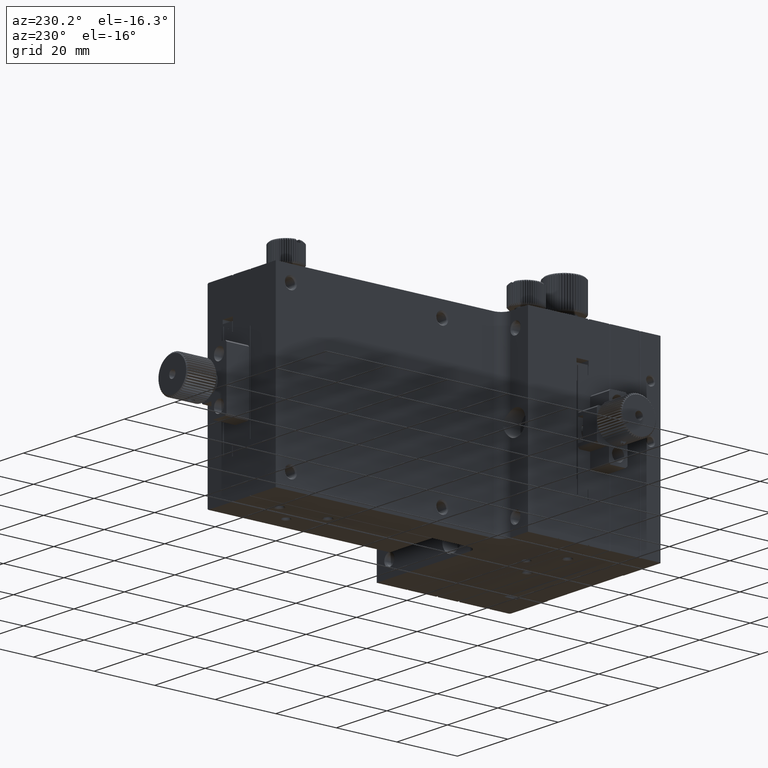
[diagram: clean part render]
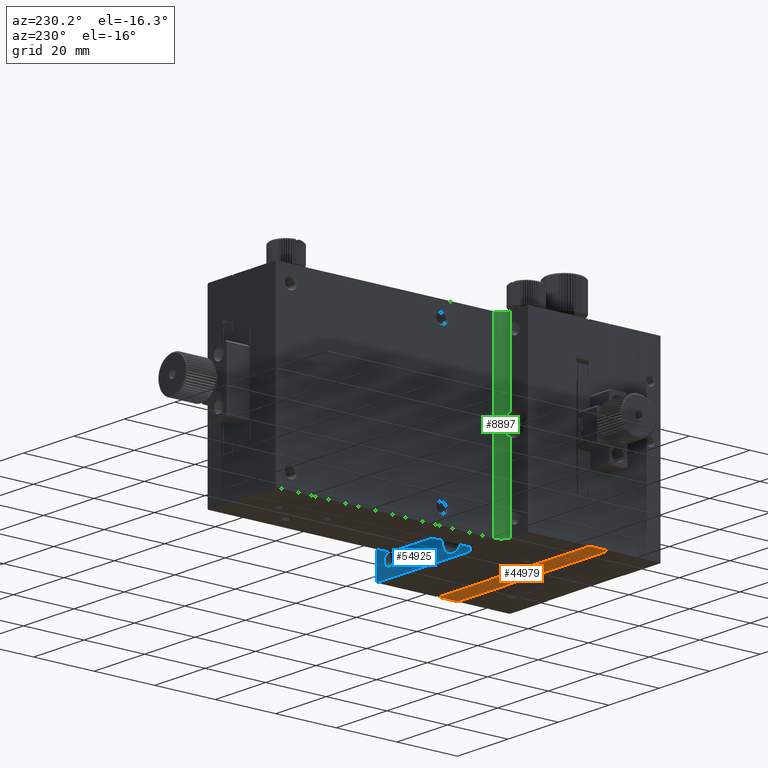
[diagram: same view with three faces highlighted in distinct colors, each labeled with its STEP entity id]
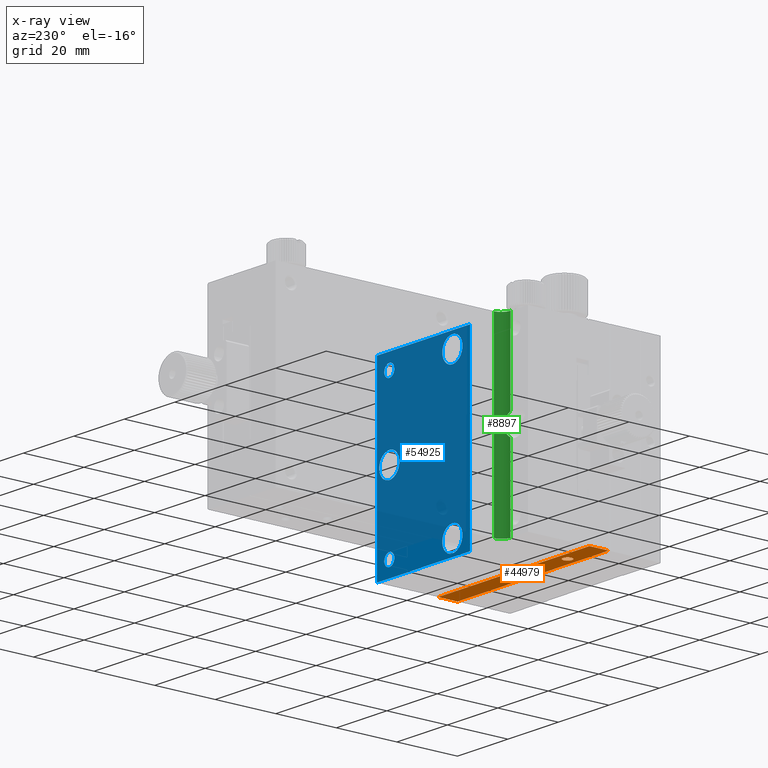
[diagram: x-ray of the same camera — body ghosted, the three highlighted faces saturated]
A machine part, auxiliary view with three faces highlighted in distinct colors.
The next image is the same camera in x-ray (body ghosted, the three faces saturated) — at least one of them is partly hidden behind the body in this view.
Their STEP definitions:

[orange] entity #44979 — the highlighted planar face has unit normal (0, 0, 1).
#297 = DIRECTION ( 'NONE',  ( -1.000000000000000000, 0.000000000000000000, 0.000000000000000000 ) ) ;
#502 = ORIENTED_EDGE ( 'NONE', *, *, #565, .T. ) ;
#565 = EDGE_CURVE ( 'NONE', #61432, #23209, #61410, .T. ) ;
#2445 = ORIENTED_EDGE ( 'NONE', *, *, #46909, .F. ) ;
#2472 = EDGE_CURVE ( 'NONE', #51842, #51842, #29986, .T. ) ;
#3739 = CARTESIAN_POINT ( 'NONE',  ( 60.00000000000000000, -10.29999999999998117, -60.00000000000000000 ) ) ;
#4058 = VECTOR ( 'NONE', #16134, 1000.000000000000000 ) ;
#6681 = ORIENTED_EDGE ( 'NONE', *, *, #53679, .F. ) ;
#8360 = VECTOR ( 'NONE', #37218, 1000.000000000000000 ) ;
#8801 = EDGE_LOOP ( 'NONE', ( #38673 ) ) ;
#11036 = LINE ( 'NONE', #40934, #4058 ) ;
#13781 = ORIENTED_EDGE ( 'NONE', *, *, #59501, .F. ) ;
#15052 = DIRECTION ( 'NONE',  ( -0.000000000000000000, 1.000000000000000000, 0.000000000000000000 ) ) ;
#16134 = DIRECTION ( 'NONE',  ( 1.000000000000000000, 0.000000000000000000, -0.000000000000000000 ) ) ;
#18873 = FACE_BOUND ( 'NONE', #8801, .T. ) ;
#20150 = CARTESIAN_POINT ( 'NONE',  ( 0.000000000000000000, -16.69999999999999218, -60.00000000000000000 ) ) ;
#21543 = VECTOR ( 'NONE', #34009, 1000.000000000000000 ) ;
#22133 = DIRECTION ( 'NONE',  ( -1.000000000000000000, 0.000000000000000000, 0.000000000000000000 ) ) ;
#23209 = VERTEX_POINT ( 'NONE', #51074 ) ;
#23519 = CARTESIAN_POINT ( 'NONE',  ( 0.000000000000000000, -17.00000000000000000, -60.00000000000000000 ) ) ;
#24023 = VECTOR ( 'NONE', #15052, 1000.000000000000000 ) ;
#25303 = AXIS2_PLACEMENT_3D ( 'NONE', #47069, #48060, #297 ) ;
#27784 = EDGE_LOOP ( 'NONE', ( #13781, #6681, #2445, #502 ) ) ;
#29986 = CIRCLE ( 'NONE', #54333, 1.500000000032742475 ) ;
#30533 = AXIS2_PLACEMENT_3D ( 'NONE', #34152, #57682, #58624 ) ;
#34009 = DIRECTION ( 'NONE',  ( -1.000000000000000000, -0.000000000000000000, 0.000000000000000000 ) ) ;
#34152 = CARTESIAN_POINT ( 'NONE',  ( 60.00000000000000000, -16.69999999999998863, -60.00000000000000000 ) ) ;
#34157 = CARTESIAN_POINT ( 'NONE',  ( 60.00000000000000000, -10.29999999999997939, -60.00000000000000000 ) ) ;
#34477 = VERTEX_POINT ( 'NONE', #49411 ) ;
#37218 = DIRECTION ( 'NONE',  ( -0.000000000000000000, 1.000000000000000000, 0.000000000000000000 ) ) ;
#37975 = CARTESIAN_POINT ( 'NONE',  ( 60.00000000000000000, -16.69999999999999218, -60.00000000000000000 ) ) ;
#38673 = ORIENTED_EDGE ( 'NONE', *, *, #2472, .F. ) ;
#38929 = PLANE ( 'NONE',  #30533 ) ;
#40934 = CARTESIAN_POINT ( 'NONE',  ( 60.00000000000000000, -16.69999999999998863, -60.00000000000000000 ) ) ;
#41547 = CARTESIAN_POINT ( 'NONE',  ( 12.50000000000000000, -13.50000000000000178, -60.00000000000227374 ) ) ;
#44001 = LINE ( 'NONE', #47600, #24023 ) ;
#44979 = ADVANCED_FACE ( 'NONE', ( #62476, #18873, #53211 ), #38929, .F. ) ;
#46909 = EDGE_CURVE ( 'NONE', #61432, #55225, #11036, .T. ) ;
#47069 = CARTESIAN_POINT ( 'NONE',  ( 28.50000000000000000, -13.50000000000000178, -60.00000000000227374 ) ) ;
#47393 = LINE ( 'NONE', #3739, #21543 ) ;
#47600 = CARTESIAN_POINT ( 'NONE',  ( 60.00000000000000000, -17.00000000000000000, -60.00000000000000000 ) ) ;
#48060 = DIRECTION ( 'NONE',  ( 0.000000000000000000, 0.000000000000000000, -1.000000000000000000 ) ) ;
#48349 = EDGE_LOOP ( 'NONE', ( #61289 ) ) ;
#49411 = CARTESIAN_POINT ( 'NONE',  ( 26.99999999998681233, -13.50000000000000178, -60.00000000000227374 ) ) ;
#51074 = CARTESIAN_POINT ( 'NONE',  ( 0.000000000000000000, -10.29999999999997939, -60.00000000000000000 ) ) ;
#51842 = VERTEX_POINT ( 'NONE', #55335 ) ;
#52735 = CIRCLE ( 'NONE', #25303, 1.500000000013188783 ) ;
#53211 = FACE_BOUND ( 'NONE', #48349, .T. ) ;
#53679 = EDGE_CURVE ( 'NONE', #55225, #59260, #44001, .T. ) ;
#54333 = AXIS2_PLACEMENT_3D ( 'NONE', #41547, #61591, #22133 ) ;
#55225 = VERTEX_POINT ( 'NONE', #37975 ) ;
#55335 = CARTESIAN_POINT ( 'NONE',  ( 10.99999999996725819, -13.50000000000000178, -60.00000000000227374 ) ) ;
#55546 = EDGE_CURVE ( 'NONE', #34477, #34477, #52735, .T. ) ;
#57682 = DIRECTION ( 'NONE',  ( 0.000000000000000000, 0.000000000000000000, 1.000000000000000000 ) ) ;
#58624 = DIRECTION ( 'NONE',  ( 1.000000000000000000, 0.000000000000000000, -0.000000000000000000 ) ) ;
#59260 = VERTEX_POINT ( 'NONE', #34157 ) ;
#59501 = EDGE_CURVE ( 'NONE', #59260, #23209, #47393, .T. ) ;
#61289 = ORIENTED_EDGE ( 'NONE', *, *, #55546, .F. ) ;
#61410 = LINE ( 'NONE', #23519, #8360 ) ;
#61432 = VERTEX_POINT ( 'NONE', #20150 ) ;
#61591 = DIRECTION ( 'NONE',  ( 0.000000000000000000, 0.000000000000000000, -1.000000000000000000 ) ) ;
#62476 = FACE_OUTER_BOUND ( 'NONE', #27784, .T. ) ;

[blue] entity #54925 — the highlighted planar face has unit normal (0, 1, 0).
#1139 = EDGE_LOOP ( 'NONE', ( #60694 ) ) ;
#1708 = CIRCLE ( 'NONE', #41390, 2.000000000014097168 ) ;
#2951 = VERTEX_POINT ( 'NONE', #7704 ) ;
#3283 = CARTESIAN_POINT ( 'NONE',  ( 23.00000000000000000, 10.00000000000000178, -60.00000000000000000 ) ) ;
#4722 = DIRECTION ( 'NONE',  ( 0.000000000000000000, 0.000000000000000000, -1.000000000000000000 ) ) ;
#4815 = VERTEX_POINT ( 'NONE', #52273 ) ;
#5153 = LINE ( 'NONE', #62172, #26423 ) ;
#5542 = DIRECTION ( 'NONE',  ( -0.000000000000000000, 0.000000000000000000, -1.000000000000000000 ) ) ;
#7247 = CIRCLE ( 'NONE', #27651, 4.000000000000003553 ) ;
#7637 = LINE ( 'NONE', #50990, #18066 ) ;
#7704 = CARTESIAN_POINT ( 'NONE',  ( 55.00000000000000000, 10.00000000000000000, -34.00000000000000000 ) ) ;
#8135 = CARTESIAN_POINT ( 'NONE',  ( 30.00000000000000000, 10.00000000000000000, -9.000000000000001776 ) ) ;
#8386 = ORIENTED_EDGE ( 'NONE', *, *, #45010, .F. ) ;
#9081 = VERTEX_POINT ( 'NONE', #8135 ) ;
#9161 = VECTOR ( 'NONE', #5542, 1000.000000000000000 ) ;
#10822 = DIRECTION ( 'NONE',  ( 0.000000000000000000, 0.000000000000000000, -1.000000000000000000 ) ) ;
#11243 = EDGE_LOOP ( 'NONE', ( #20340 ) ) ;
#11883 = EDGE_CURVE ( 'NONE', #9081, #9081, #62149, .T. ) ;
#12736 = ORIENTED_EDGE ( 'NONE', *, *, #51970, .T. ) ;
#13875 = FACE_BOUND ( 'NONE', #11243, .T. ) ;
#15627 = CARTESIAN_POINT ( 'NONE',  ( 23.00000000000000000, 10.00000000000000178, 0.000000000000000000 ) ) ;
#16359 = VERTEX_POINT ( 'NONE', #15627 ) ;
#16410 = AXIS2_PLACEMENT_3D ( 'NONE', #24381, #43796, #44096 ) ;
#18066 = VECTOR ( 'NONE', #36670, 1000.000000000000000 ) ;
#18343 = FACE_BOUND ( 'NONE', #26518, .T. ) ;
#18566 = DIRECTION ( 'NONE',  ( -1.000000000000000000, -0.000000000000000000, 0.000000000000000000 ) ) ;
#20340 = ORIENTED_EDGE ( 'NONE', *, *, #11883, .T. ) ;
#20826 = CIRCLE ( 'NONE', #43142, 2.000000000059572347 ) ;
#23084 = CARTESIAN_POINT ( 'NONE',  ( 30.00000000000000000, 10.00000000000000000, -59.00000000000000000 ) ) ;
#24381 = CARTESIAN_POINT ( 'NONE',  ( 30.00000000000000000, 10.00000000000000000, -5.000000000000000000 ) ) ;
#24590 = EDGE_CURVE ( 'NONE', #39419, #16359, #34892, .T. ) ;
#24665 = FACE_OUTER_BOUND ( 'NONE', #33664, .T. ) ;
#25272 = AXIS2_PLACEMENT_3D ( 'NONE', #57137, #57768, #33622 ) ;
#25685 = DIRECTION ( 'NONE',  ( 0.000000000000000000, 0.000000000000000000, 1.000000000000000000 ) ) ;
#26312 = DIRECTION ( 'NONE',  ( 0.000000000000000000, -1.000000000000000000, -0.000000000000000000 ) ) ;
#26423 = VECTOR ( 'NONE', #18566, 1000.000000000000000 ) ;
#26518 = EDGE_LOOP ( 'NONE', ( #48358 ) ) ;
#27068 = CARTESIAN_POINT ( 'NONE',  ( 55.00000000000000000, 10.00000000000000000, -30.00000000000000000 ) ) ;
#27159 = CIRCLE ( 'NONE', #36332, 3.999999999999996447 ) ;
#27651 = AXIS2_PLACEMENT_3D ( 'NONE', #27068, #49031, #4722 ) ;
#28176 = VERTEX_POINT ( 'NONE', #46923 ) ;
#30870 = CARTESIAN_POINT ( 'NONE',  ( 30.00000000000000000, 10.00000000000000000, -55.00000000000000000 ) ) ;
#31347 = DIRECTION ( 'NONE',  ( 0.000000000000000000, -1.000000000000000000, -0.000000000000000000 ) ) ;
#33467 = CARTESIAN_POINT ( 'NONE',  ( 55.00000000000000000, 9.999999999990905053, -2.999999999985902832 ) ) ;
#33622 = DIRECTION ( 'NONE',  ( 0.000000000000000000, -0.000000000000000000, 1.000000000000000000 ) ) ;
#33664 = EDGE_LOOP ( 'NONE', ( #37168, #53033, #8386, #51229 ) ) ;
#34570 = CARTESIAN_POINT ( 'NONE',  ( 60.00000000000000000, 10.00000000000000000, -60.00000000000000000 ) ) ;
#34892 = LINE ( 'NONE', #43802, #57023 ) ;
#35020 = EDGE_CURVE ( 'NONE', #28176, #39419, #7637, .T. ) ;
#35813 = DIRECTION ( 'NONE',  ( 0.000000000000000000, 0.000000000000000000, 1.000000000000000000 ) ) ;
#36332 = AXIS2_PLACEMENT_3D ( 'NONE', #30870, #44882, #10822 ) ;
#36670 = DIRECTION ( 'NONE',  ( -1.000000000000000000, -0.000000000000000000, 0.000000000000000000 ) ) ;
#37168 = ORIENTED_EDGE ( 'NONE', *, *, #35020, .T. ) ;
#38053 = PLANE ( 'NONE',  #25272 ) ;
#39275 = EDGE_CURVE ( 'NONE', #53195, #28176, #58729, .T. ) ;
#39419 = VERTEX_POINT ( 'NONE', #3283 ) ;
#40142 = ORIENTED_EDGE ( 'NONE', *, *, #62195, .T. ) ;
#41390 = AXIS2_PLACEMENT_3D ( 'NONE', #50128, #31347, #35813 ) ;
#42715 = EDGE_CURVE ( 'NONE', #43762, #43762, #27159, .T. ) ;
#43142 = AXIS2_PLACEMENT_3D ( 'NONE', #50508, #26312, #25685 ) ;
#43473 = DIRECTION ( 'NONE',  ( 0.000000000000000000, 0.000000000000000000, 1.000000000000000000 ) ) ;
#43762 = VERTEX_POINT ( 'NONE', #23084 ) ;
#43796 = DIRECTION ( 'NONE',  ( 0.000000000000000000, -1.000000000000000000, 0.000000000000000000 ) ) ;
#43802 = CARTESIAN_POINT ( 'NONE',  ( 23.00000000000000000, 10.00000000000000178, -60.00000000000000000 ) ) ;
#44096 = DIRECTION ( 'NONE',  ( 0.000000000000000000, 0.000000000000000000, -1.000000000000000000 ) ) ;
#44882 = DIRECTION ( 'NONE',  ( 0.000000000000000000, -1.000000000000000000, 0.000000000000000000 ) ) ;
#45010 = EDGE_CURVE ( 'NONE', #53195, #16359, #5153, .T. ) ;
#46923 = CARTESIAN_POINT ( 'NONE',  ( 60.00000000000000000, 10.00000000000000000, -60.00000000000000000 ) ) ;
#47611 = FACE_BOUND ( 'NONE', #1139, .T. ) ;
#47879 = EDGE_CURVE ( 'NONE', #2951, #2951, #7247, .T. ) ;
#48078 = VERTEX_POINT ( 'NONE', #33467 ) ;
#48358 = ORIENTED_EDGE ( 'NONE', *, *, #42715, .T. ) ;
#49031 = DIRECTION ( 'NONE',  ( 0.000000000000000000, -1.000000000000000000, 0.000000000000000000 ) ) ;
#50128 = CARTESIAN_POINT ( 'NONE',  ( 55.00000000000000000, 9.999999999990905053, -5.000000000000000000 ) ) ;
#50508 = CARTESIAN_POINT ( 'NONE',  ( 55.00000000000000000, 9.999999999990905053, -55.00000000000000000 ) ) ;
#50990 = CARTESIAN_POINT ( 'NONE',  ( 23.00000000000000000, 10.00000000000000000, -60.00000000000000000 ) ) ;
#51229 = ORIENTED_EDGE ( 'NONE', *, *, #39275, .T. ) ;
#51970 = EDGE_CURVE ( 'NONE', #4815, #4815, #20826, .T. ) ;
#52273 = CARTESIAN_POINT ( 'NONE',  ( 55.00000000000000000, 9.999999999990905053, -52.99999999994042810 ) ) ;
#53033 = ORIENTED_EDGE ( 'NONE', *, *, #24590, .T. ) ;
#53195 = VERTEX_POINT ( 'NONE', #61367 ) ;
#54925 = ADVANCED_FACE ( 'NONE', ( #24665, #61945, #62561, #13875, #18343, #47611 ), #38053, .T. ) ;
#57023 = VECTOR ( 'NONE', #43473, 1000.000000000000000 ) ;
#57137 = CARTESIAN_POINT ( 'NONE',  ( 60.00000000000000000, 10.00000000000000000, -60.00000000000000000 ) ) ;
#57768 = DIRECTION ( 'NONE',  ( 0.000000000000000000, 1.000000000000000000, 0.000000000000000000 ) ) ;
#58729 = LINE ( 'NONE', #34570, #9161 ) ;
#60060 = EDGE_LOOP ( 'NONE', ( #12736 ) ) ;
#60148 = EDGE_LOOP ( 'NONE', ( #40142 ) ) ;
#60694 = ORIENTED_EDGE ( 'NONE', *, *, #47879, .T. ) ;
#61367 = CARTESIAN_POINT ( 'NONE',  ( 60.00000000000000000, 10.00000000000000000, 0.000000000000000000 ) ) ;
#61945 = FACE_BOUND ( 'NONE', #60060, .T. ) ;
#62149 = CIRCLE ( 'NONE', #16410, 4.000000000000000888 ) ;
#62172 = CARTESIAN_POINT ( 'NONE',  ( 23.00000000000000000, 10.00000000000000000, 0.000000000000000000 ) ) ;
#62195 = EDGE_CURVE ( 'NONE', #48078, #48078, #1708, .T. ) ;
#62561 = FACE_BOUND ( 'NONE', #60148, .T. ) ;

[green] entity #8897 — the highlighted cylindrical surface (edge-blend (fillet) strip) has radius 3 mm, axis along (0, 0, 1).
#392 = DIRECTION ( 'NONE',  ( 1.000000000000000000, 0.000000000000000000, 0.000000000000000000 ) ) ;
#916 = ORIENTED_EDGE ( 'NONE', *, *, #58004, .F. ) ;
#1255 = CARTESIAN_POINT ( 'NONE',  ( 7.000000000000000000, 10.00000000000000000, -60.00000000000000000 ) ) ;
#2092 = VECTOR ( 'NONE', #40101, 1000.000000000000000 ) ;
#2729 = CARTESIAN_POINT ( 'NONE',  ( 7.000000000000000000, 10.00000000000000000, -60.00000000000000000 ) ) ;
#3162 = ORIENTED_EDGE ( 'NONE', *, *, #4739, .F. ) ;
#3464 = ORIENTED_EDGE ( 'NONE', *, *, #10177, .F. ) ;
#3673 = CARTESIAN_POINT ( 'NONE',  ( 8.940000019769701822, 10.71146632080361094, -29.28750962912575062 ) ) ;
#3992 = CARTESIAN_POINT ( 'NONE',  ( 8.770366646569348390, 10.57525945648404786, -31.38096871985507974 ) ) ;
#3999 = EDGE_CURVE ( 'NONE', #27385, #7300, #7486, .T. ) ;
#4739 = EDGE_CURVE ( 'NONE', #57182, #29800, #38960, .T. ) ;
#4845 = AXIS2_PLACEMENT_3D ( 'NONE', #36297, #11495, #25796 ) ;
#5051 = VERTEX_POINT ( 'NONE', #58262 ) ;
#7300 = VERTEX_POINT ( 'NONE', #46331 ) ;
#7486 = LINE ( 'NONE', #2729, #21015 ) ;
#7504 = EDGE_CURVE ( 'NONE', #5051, #57182, #31514, .T. ) ;
#7892 = ORIENTED_EDGE ( 'NONE', *, *, #3999, .F. ) ;
#8455 = CARTESIAN_POINT ( 'NONE',  ( 8.634497973715349772, 10.47674978689448366, -28.29492747798813568 ) ) ;
#8897 = ADVANCED_FACE ( 'NONE', ( #16898 ), #11796, .F. ) ;
#10177 = EDGE_CURVE ( 'NONE', #47124, #5051, #53585, .T. ) ;
#11495 = DIRECTION ( 'NONE',  ( 0.000000000000000000, 0.000000000000000000, 1.000000000000000000 ) ) ;
#11796 = CYLINDRICAL_SURFACE ( 'NONE', #4845, 3.000000000000011546 ) ;
#12633 = CARTESIAN_POINT ( 'NONE',  ( 8.292487705944772358, 10.28562147186538489, -27.70296440330946908 ) ) ;
#12755 = CARTESIAN_POINT ( 'NONE',  ( 6.999999999999995559, 10.00000000000000000, 0.000000000000000000 ) ) ;
#16629 = CARTESIAN_POINT ( 'NONE',  ( 6.999999999999988454, 9.999999999999994671, -33.46410161513775705 ) ) ;
#16898 = FACE_OUTER_BOUND ( 'NONE', #55198, .T. ) ;
#17438 = CARTESIAN_POINT ( 'NONE',  ( 7.963981669359839977, 10.15623917660207631, -32.69165614810122378 ) ) ;
#18375 = CARTESIAN_POINT ( 'NONE',  ( 8.638860312682433928, 10.47949724770066560, -31.69628394114670655 ) ) ;
#20516 = DIRECTION ( 'NONE',  ( 0.000000000000000000, 0.000000000000000000, 1.000000000000000000 ) ) ;
#21015 = VECTOR ( 'NONE', #22178, 1000.000000000000000 ) ;
#21318 = LINE ( 'NONE', #1255, #2092 ) ;
#22178 = DIRECTION ( 'NONE',  ( -0.000000000000000000, 0.000000000000000000, -1.000000000000000000 ) ) ;
#23389 = AXIS2_PLACEMENT_3D ( 'NONE', #28104, #44007, #392 ) ;
#24447 = EDGE_CURVE ( 'NONE', #29800, #27385, #28424, .T. ) ;
#25796 = DIRECTION ( 'NONE',  ( 1.000000000000000000, 0.000000000000000000, 0.000000000000000000 ) ) ;
#26382 = VECTOR ( 'NONE', #20516, 1000.000000000000000 ) ;
#26956 = CARTESIAN_POINT ( 'NONE',  ( 8.381142142787478377, 10.33501487928638518, -32.14418952201488366 ) ) ;
#27282 = CARTESIAN_POINT ( 'NONE',  ( 7.312159122410757384, 9.999999999999985789, -33.28387646178390469 ) ) ;
#27385 = VERTEX_POINT ( 'NONE', #16629 ) ;
#27474 = AXIS2_PLACEMENT_3D ( 'NONE', #28506, #43757, #47601 ) ;
#28104 = CARTESIAN_POINT ( 'NONE',  ( 6.999999999999990230, 13.00000000000000178, -60.00000000000000000 ) ) ;
#28424 = B_SPLINE_CURVE_WITH_KNOTS ( 'NONE', 3,
 ( #56857, #57167, #57473, #52083, #12633, #8455, #61027, #37469, #3673, #33332, #36845, #61976, #56208, #56522, #51457, #3992, #18375, #26956, #61644, #32059, #17438, #47025, #27282, #42218 ),
 .UNSPECIFIED., .F., .F.,
 ( 4, 2, 2, 2, 2, 2, 2, 2, 2, 2, 2, 4 ),
 ( 2.096074351170153978E-17, 0.001062721174830354165, 0.002125442349660689248, 0.003188163524491024331, 0.003719524111906186668, 0.004250884699321349006, 0.004782245286736512210, 0.005313605874151674548, 0.006376327048982011365, 0.006907687636397186713, 0.007439048223812361194, 0.008501769398642724032 ),
 .UNSPECIFIED. ) ;
#28506 = CARTESIAN_POINT ( 'NONE',  ( 6.999999999999990230, 13.00000000000000178, 0.000000000000000000 ) ) ;
#29438 = CARTESIAN_POINT ( 'NONE',  ( 10.00000000000000000, 13.00000000000000000, -60.00000000000000000 ) ) ;
#29800 = VERTEX_POINT ( 'NONE', #35427 ) ;
#30056 = CARTESIAN_POINT ( 'NONE',  ( 10.00000000000000000, 12.99999999999999822, -60.00000000000000000 ) ) ;
#31514 = CIRCLE ( 'NONE', #27474, 3.000000000000011546 ) ;
#32059 = CARTESIAN_POINT ( 'NONE',  ( 8.076887975370846462, 10.19765229357674485, -32.56169483567061462 ) ) ;
#33332 = CARTESIAN_POINT ( 'NONE',  ( 8.987488742780781692, 10.75258482366023394, -29.63781743475101393 ) ) ;
#35427 = CARTESIAN_POINT ( 'NONE',  ( 6.999999999999995559, 10.00000000000000000, -26.53589838486224295 ) ) ;
#36297 = CARTESIAN_POINT ( 'NONE',  ( 6.999999999999990230, 13.00000000000000178, -60.00000000000000000 ) ) ;
#36845 = CARTESIAN_POINT ( 'NONE',  ( 8.999841932630252117, 10.76379064294338939, -29.81888667577856467 ) ) ;
#37469 = CARTESIAN_POINT ( 'NONE',  ( 8.905134346940171142, 10.68185414786063525, -29.11696030913898170 ) ) ;
#37635 = ORIENTED_EDGE ( 'NONE', *, *, #24447, .F. ) ;
#38949 = EDGE_CURVE ( 'NONE', #7300, #61489, #21318, .T. ) ;
#38960 = LINE ( 'NONE', #43723, #44319 ) ;
#39690 = ORIENTED_EDGE ( 'NONE', *, *, #38949, .F. ) ;
#40101 = DIRECTION ( 'NONE',  ( -0.000000000000000000, 0.000000000000000000, -1.000000000000000000 ) ) ;
#42218 = CARTESIAN_POINT ( 'NONE',  ( 6.999999999999988454, 9.999999999999994671, -33.46410161513775705 ) ) ;
#43723 = CARTESIAN_POINT ( 'NONE',  ( 7.000000000000000000, 10.00000000000000000, -60.00000000000000000 ) ) ;
#43757 = DIRECTION ( 'NONE',  ( -0.000000000000000000, -0.000000000000000000, -1.000000000000000000 ) ) ;
#44007 = DIRECTION ( 'NONE',  ( 0.000000000000000000, 0.000000000000000000, 1.000000000000000000 ) ) ;
#44319 = VECTOR ( 'NONE', #58341, 1000.000000000000000 ) ;
#46331 = CARTESIAN_POINT ( 'NONE',  ( 7.000000000000000000, 9.999999999995454303, -55.00000000000000000 ) ) ;
#47025 = CARTESIAN_POINT ( 'NONE',  ( 7.597069705246282112, 10.04899120887526820, -33.06203030189791292 ) ) ;
#47124 = VERTEX_POINT ( 'NONE', #29438 ) ;
#47601 = DIRECTION ( 'NONE',  ( 1.000000000000000000, -1.156482317317866992E-15, 0.000000000000000000 ) ) ;
#50839 = CIRCLE ( 'NONE', #23389, 3.000000000000011546 ) ;
#51457 = CARTESIAN_POINT ( 'NONE',  ( 8.907359928884956091, 10.68367331894920369, -30.87362646470863581 ) ) ;
#52083 = CARTESIAN_POINT ( 'NONE',  ( 8.084193772606303341, 10.19093644093117135, -27.42885353740401300 ) ) ;
#53585 = LINE ( 'NONE', #30056, #26382 ) ;
#55198 = EDGE_LOOP ( 'NONE', ( #3162, #58851, #3464, #916, #39690, #7892, #37635 ) ) ;
#56208 = CARTESIAN_POINT ( 'NONE',  ( 8.988539074249068506, 10.75352584394124200, -30.35006438806567175 ) ) ;
#56522 = CARTESIAN_POINT ( 'NONE',  ( 8.942366245519268730, 10.71348580762711222, -30.69909756743512119 ) ) ;
#56857 = CARTESIAN_POINT ( 'NONE',  ( 6.999999999999995559, 10.00000000000000000, -26.53589838486224295 ) ) ;
#57167 = CARTESIAN_POINT ( 'NONE',  ( 7.312148503375356157, 9.999999999999985789, -26.71611740731314200 ) ) ;
#57182 = VERTEX_POINT ( 'NONE', #12755 ) ;
#57473 = CARTESIAN_POINT ( 'NONE',  ( 7.589609238251441958, 10.04725971991858202, -26.93129190826723374 ) ) ;
#58004 = EDGE_CURVE ( 'NONE', #61489, #47124, #50839, .T. ) ;
#58262 = CARTESIAN_POINT ( 'NONE',  ( 10.00000000000000000, 13.00000000000000000, 0.000000000000000000 ) ) ;
#58341 = DIRECTION ( 'NONE',  ( -0.000000000000000000, 0.000000000000000000, -1.000000000000000000 ) ) ;
#58851 = ORIENTED_EDGE ( 'NONE', *, *, #7504, .F. ) ;
#59586 = CARTESIAN_POINT ( 'NONE',  ( 6.999999999999995559, 10.00000000000000000, -60.00000000000000000 ) ) ;
#61027 = CARTESIAN_POINT ( 'NONE',  ( 8.769152334939166238, 10.57441794562466875, -28.61695114722085265 ) ) ;
#61489 = VERTEX_POINT ( 'NONE', #59586 ) ;
#61644 = CARTESIAN_POINT ( 'NONE',  ( 8.285217367456340298, 10.28687326179137429, -32.28842017397296615 ) ) ;
#61976 = CARTESIAN_POINT ( 'NONE',  ( 9.000154960391416381, 10.76407062309306362, -30.17406267576311762 ) ) ;